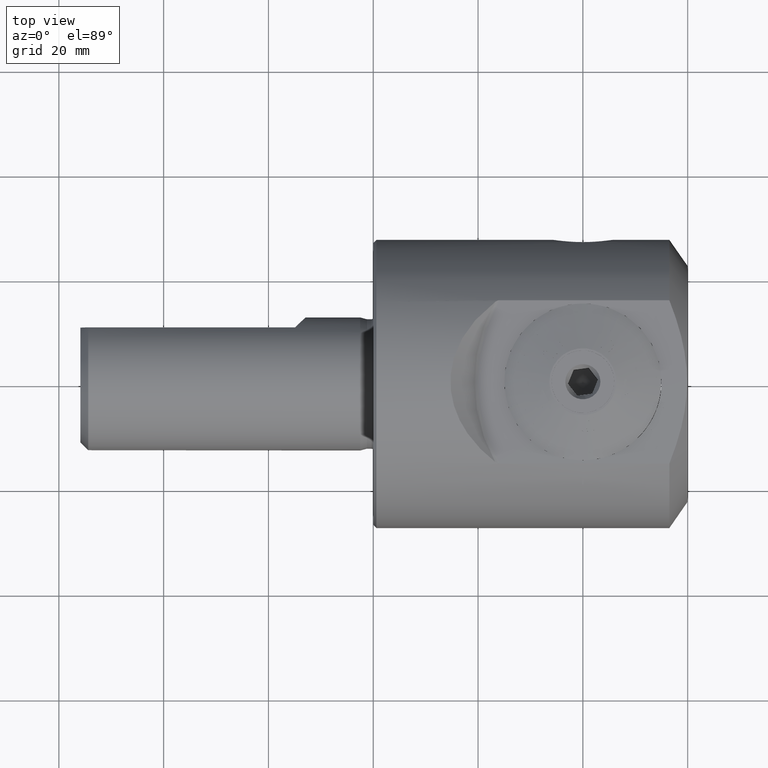
[diagram: clean part render]
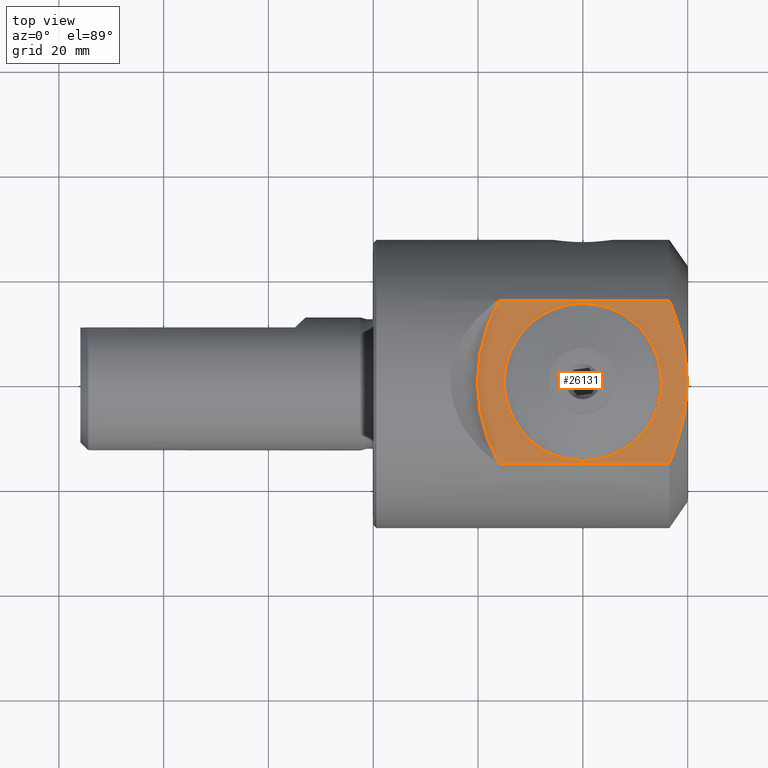
[diagram: same view with one face highlighted and labeled with its STEP entity id]
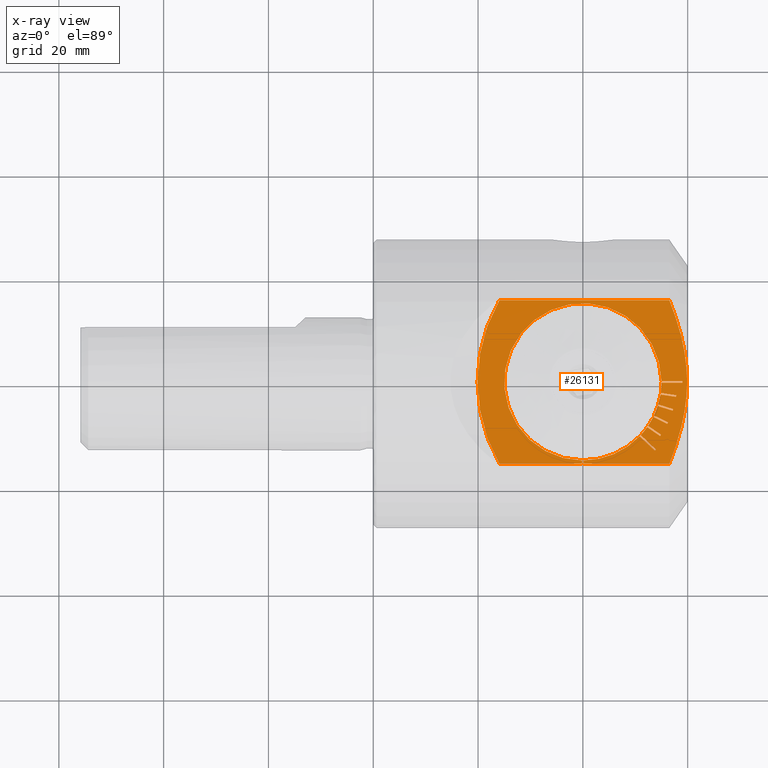
[diagram: x-ray of the same camera — body ghosted, the highlighted face saturated]
A machine part, top view. The second image highlights one B-rep face of the part: STEP entity #26131.
The next image is the same camera in x-ray: the body ghosted, the highlighted face saturated — about 0% of this face is hidden behind the body in this view.
In plain terms, the highlighted planar face has unit normal (-0, 0, -1).
Its self-contained STEP definition (entity closure, byte-faithful):
#112 = CIRCLE ( 'NONE', #9899, 14.99999999999999600 ) ;
#169 = CARTESIAN_POINT ( 'NONE',  ( 52.26728095716715200, -8.632138664196952900, 22.65000000000000200 ) ) ;
#297 = VERTEX_POINT ( 'NONE', #6872 ) ;
#301 = EDGE_CURVE ( 'NONE', #20722, #5691, #8030, .T. ) ;
#373 = EDGE_LOOP ( 'NONE', ( #12029, #12632, #1383, #11492, #11429, #8957, #24335, #26298, #10189, #18313, #18772, #25065, #17979, #4882, #21015, #24586, #26972, #1528, #20062, #3791, #993, #16313, #11646, #27628, #19376, #24517, #17328, #25419, #3711, #13087, #3928, #3365, #20590, #3291 ) ) ;
#639 = VERTEX_POINT ( 'NONE', #18731 ) ;
#834 = DIRECTION ( 'NONE',  ( 0.5672689491267530700, 0.8235325976284297900, 0.0000000000000000000 ) ) ;
#853 = CARTESIAN_POINT ( 'NONE',  ( 56.49999999999999300, 15.59575262691738300, 22.64999999999999100 ) ) ;
#867 = VERTEX_POINT ( 'NONE', #10969 ) ;
#926 = EDGE_CURVE ( 'NONE', #7166, #24728, #11368, .T. ) ;
#993 = ORIENTED_EDGE ( 'NONE', *, *, #27770, .F. ) ;
#1220 = CARTESIAN_POINT ( 'NONE',  ( 59.25221030413100500, 6.634799599960702600, 22.64999999999999500 ) ) ;
#1280 = DIRECTION ( 'NONE',  ( 0.2970415815770071100, 0.9548645447466516100, 0.0000000000000000000 ) ) ;
#1383 = ORIENTED_EDGE ( 'NONE', *, *, #6466, .T. ) ;
#1528 = ORIENTED_EDGE ( 'NONE', *, *, #20598, .F. ) ;
#1665 = EDGE_CURVE ( 'NONE', #5389, #24127, #6088, .T. ) ;
#1674 = VECTOR ( 'NONE', #9816, 1000.000000000000000 ) ;
#1874 = VERTEX_POINT ( 'NONE', #14433 ) ;
#2147 = LINE ( 'NONE', #13388, #2849 ) ;
#2157 = DIRECTION ( 'NONE',  ( -1.000000000000000000, 0.0000000000000000000, 2.312964634635743400E-016 ) ) ;
#2240 = VECTOR ( 'NONE', #6170, 1000.000000000000000 ) ;
#2306 = EDGE_CURVE ( 'NONE', #24236, #24120, #12487, .T. ) ;
#2334 = CARTESIAN_POINT ( 'NONE',  ( 56.25486189319232000, -7.733173011981859800, 22.65000000000000200 ) ) ;
#2348 = EDGE_CURVE ( 'NONE', #25229, #3007, #16179, .T. ) ;
#2530 = AXIS2_PLACEMENT_3D ( 'NONE', #22197, #2617, #9444 ) ;
#2617 = DIRECTION ( 'NONE',  ( 1.820679915794073900E-016, 0.0000000000000000000, 1.000000000000000000 ) ) ;
#2620 = CARTESIAN_POINT ( 'NONE',  ( 40.00000000000000000, 0.0000000000000000000, 22.64999999999999500 ) ) ;
#2796 = CARTESIAN_POINT ( 'NONE',  ( 54.90867709968068800, -10.08731119463737300, 22.65000000000000200 ) ) ;
#2805 = CARTESIAN_POINT ( 'NONE',  ( 39.85000000000000100, -15.59575262691739200, 22.64999999999998800 ) ) ;
#2820 = CARTESIAN_POINT ( 'NONE',  ( 57.48735440848770400, -13.10934320093748800, 22.64999999999999500 ) ) ;
#2829 = DIRECTION ( 'NONE',  ( 0.7289686274214100000, -0.6845471059286903900, 0.0000000000000000000 ) ) ;
#2849 = VECTOR ( 'NONE', #17484, 1000.000000000000000 ) ;
#3007 = VERTEX_POINT ( 'NONE', #8968 ) ;
#3195 = CARTESIAN_POINT ( 'NONE',  ( 59.24297688907884700, -6.679963896193523700, 22.64999999999999100 ) ) ;
#3252 = CARTESIAN_POINT ( 'NONE',  ( 51.07000000000000700, 0.0000000000000000000, 22.64999999999999100 ) ) ;
#3286 = CARTESIAN_POINT ( 'NONE',  ( 59.73031637954093800, -3.348392018082204200, 22.64999999999998800 ) ) ;
#3291 = ORIENTED_EDGE ( 'NONE', *, *, #7636, .F. ) ;
#3365 = ORIENTED_EDGE ( 'NONE', *, *, #14481, .F. ) ;
#3381 = CARTESIAN_POINT ( 'NONE',  ( 58.33521630919310000, -10.58117865492519800, 22.64999999999999100 ) ) ;
#3423 = VECTOR ( 'NONE', #2829, 1000.000000000000000 ) ;
#3711 = ORIENTED_EDGE ( 'NONE', *, *, #26004, .F. ) ;
#3791 = ORIENTED_EDGE ( 'NONE', *, *, #13650, .F. ) ;
#3910 = AXIS2_PLACEMENT_3D ( 'NONE', #26778, #5374, #22671 ) ;
#3928 = ORIENTED_EDGE ( 'NONE', *, *, #22681, .F. ) ;
#4075 = CARTESIAN_POINT ( 'NONE',  ( 40.15000000000000600, -14.99999999999999100, 22.64999999999998800 ) ) ;
#4130 = CARTESIAN_POINT ( 'NONE',  ( 50.83130060529244100, -10.37703845987820400, 22.65000000000000200 ) ) ;
#4195 = CARTESIAN_POINT ( 'NONE',  ( 57.81826524365055800, -2.555762842462945700, 22.65000000000000200 ) ) ;
#4280 = DIRECTION ( 'NONE',  ( 1.000000000000000000, 1.224646799147353200E-016, -0.0000000000000000000 ) ) ;
#4331 = CARTESIAN_POINT ( 'NONE',  ( 53.95308598689611300, -12.89704971853189100, 22.65000000000000200 ) ) ;
#4450 = VECTOR ( 'NONE', #27816, 1000.000000000000000 ) ;
#4700 = VERTEX_POINT ( 'NONE', #23548 ) ;
#4717 = DIRECTION ( 'NONE',  ( -0.8994052515663695200, 0.4371157666509360400, 0.0000000000000000000 ) ) ;
#4882 = ORIENTED_EDGE ( 'NONE', *, *, #926, .F. ) ;
#5232 = VERTEX_POINT ( 'NONE', #9751 ) ;
#5374 = DIRECTION ( 'NONE',  ( -1.820679915794073900E-016, -0.0000000000000000000, -1.000000000000000000 ) ) ;
#5376 = CARTESIAN_POINT ( 'NONE',  ( 59.89554222331553700, 1.347815987685409200, 22.64999999999999100 ) ) ;
#5389 = VERTEX_POINT ( 'NONE', #10121 ) ;
#5391 = LINE ( 'NONE', #11794, #1674 ) ;
#5480 = VERTEX_POINT ( 'NONE', #4130 ) ;
#5498 = CARTESIAN_POINT ( 'NONE',  ( 56.25486189319232000, -7.733173011981859800, 22.65000000000000200 ) ) ;
#5536 = LINE ( 'NONE', #27088, #9608 ) ;
#5554 = CARTESIAN_POINT ( 'NONE',  ( 58.06903622033956200, 11.19478618636037500, 22.64999999999999500 ) ) ;
#5628 = VECTOR ( 'NONE', #13341, 1000.000000000000100 ) ;
#5691 = VERTEX_POINT ( 'NONE', #2796 ) ;
#6088 = LINE ( 'NONE', #4195, #23540 ) ;
#6170 = DIRECTION ( 'NONE',  ( -1.000000000000000000, -1.224646799147353200E-016, 0.0000000000000000000 ) ) ;
#6401 = CARTESIAN_POINT ( 'NONE',  ( 24.08378234919614500, 15.59575262691738800, 22.64999999999998800 ) ) ;
#6466 = EDGE_CURVE ( 'NONE', #10818, #17648, #20899, .T. ) ;
#6501 = VERTEX_POINT ( 'NONE', #12872 ) ;
#6872 = CARTESIAN_POINT ( 'NONE',  ( 54.99924998124905800, 0.1499999999999993600, 22.64999999999999100 ) ) ;
#7040 = PLANE ( 'NONE',  #9056 ) ;
#7166 = VERTEX_POINT ( 'NONE', #19533 ) ;
#7208 = EDGE_CURVE ( 'NONE', #24120, #6501, #23483, .T. ) ;
#7374 = EDGE_CURVE ( 'NONE', #17532, #14649, #24809, .T. ) ;
#7454 = CARTESIAN_POINT ( 'NONE',  ( 59.79293790837655100, -2.671708943476587300, 22.64999999999998800 ) ) ;
#7636 = EDGE_CURVE ( 'NONE', #3007, #5480, #27256, .T. ) ;
#7707 = DIRECTION ( 'NONE',  ( -1.000000000000000000, 0.0000000000000000000, 2.312964634635743400E-016 ) ) ;
#8025 = LINE ( 'NONE', #14573, #2240 ) ;
#8030 = LINE ( 'NONE', #22270, #21774 ) ;
#8207 = EDGE_CURVE ( 'NONE', #24728, #22737, #15500, .T. ) ;
#8209 = CARTESIAN_POINT ( 'NONE',  ( 54.99924998124905800, -0.1499999999999994700, 22.65000000000000200 ) ) ;
#8569 = DIRECTION ( 'NONE',  ( 0.0000000000000000000, -1.000000000000000000, -0.0000000000000000000 ) ) ;
#8795 = CARTESIAN_POINT ( 'NONE',  ( 51.03666473707103500, -10.15834787165179500, 22.64999999999999100 ) ) ;
#8886 = LINE ( 'NONE', #18437, #25633 ) ;
#8957 = ORIENTED_EDGE ( 'NONE', *, *, #25481, .F. ) ;
#8968 = CARTESIAN_POINT ( 'NONE',  ( 40.00000000000000000, -14.99999999999999100, 22.64999999999998800 ) ) ;
#9056 = AXIS2_PLACEMENT_3D ( 'NONE', #3252, #25032, #22723 ) ;
#9250 = DIRECTION ( 'NONE',  ( -0.8235325976284260100, 0.5672689491267584000, 0.0000000000000000000 ) ) ;
#9285 = EDGE_CURVE ( 'NONE', #4700, #15902, #13246, .T. ) ;
#9299 = CARTESIAN_POINT ( 'NONE',  ( 57.14300556820300900, -5.489978150098637300, 22.65000000000000200 ) ) ;
#9444 = DIRECTION ( 'NONE',  ( -1.000000000000000000, 0.0000000000000000000, 2.312964634635743400E-016 ) ) ;
#9608 = VECTOR ( 'NONE', #22811, 1000.000000000000100 ) ;
#9750 = VECTOR ( 'NONE', #17130, 1000.000000000000200 ) ;
#9751 = CARTESIAN_POINT ( 'NONE',  ( 53.74772185511749700, -13.11574030675831200, 22.65000000000000200 ) ) ;
#9800 = VECTOR ( 'NONE', #27673, 1000.000000000000000 ) ;
#9816 = DIRECTION ( 'NONE',  ( 0.9886517447379138400, -0.1502255891207578100, -0.0000000000000000000 ) ) ;
#9876 = CARTESIAN_POINT ( 'NONE',  ( 39.85000000000000100, -14.99999999999999100, 22.64999999999998800 ) ) ;
#9899 = AXIS2_PLACEMENT_3D ( 'NONE', #19967, #17990, #24379 ) ;
#9924 = CARTESIAN_POINT ( 'NONE',  ( 53.95308598689611300, -12.89704971853189100, 22.65000000000000200 ) ) ;
#9949 = LINE ( 'NONE', #9924, #24025 ) ;
#9975 = CARTESIAN_POINT ( 'NONE',  ( 57.14300556820300900, -5.489978150098637300, 22.65000000000000200 ) ) ;
#10121 = CARTESIAN_POINT ( 'NONE',  ( 57.77319756691434100, -2.852358365884320800, 22.65000000000000200 ) ) ;
#10189 = ORIENTED_EDGE ( 'NONE', *, *, #11392, .F. ) ;
#10423 = VERTEX_POINT ( 'NONE', #6401 ) ;
#10434 = VECTOR ( 'NONE', #4717, 1000.000000000000000 ) ;
#10458 = VECTOR ( 'NONE', #21184, 1000.000000000000000 ) ;
#10717 = VERTEX_POINT ( 'NONE', #25861 ) ;
#10818 = VERTEX_POINT ( 'NONE', #17888 ) ;
#10969 = CARTESIAN_POINT ( 'NONE',  ( 54.27769576764991700, -4.598630618611536200, 22.65000000000000200 ) ) ;
#11010 = CIRCLE ( 'NONE', #19835, 14.99999999999999600 ) ;
#11025 = DIRECTION ( 'NONE',  ( 0.8235325976284276800, -0.5672689491267561800, 0.0000000000000000000 ) ) ;
#11342 = DIRECTION ( 'NONE',  ( 1.820679915794073900E-016, 0.0000000000000000000, 1.000000000000000000 ) ) ;
#11368 = CIRCLE ( 'NONE', #18902, 14.99999999999999600 ) ;
#11392 = EDGE_CURVE ( 'NONE', #3007, #17532, #17415, .T. ) ;
#11429 = ORIENTED_EDGE ( 'NONE', *, *, #19544, .T. ) ;
#11442 = VERTEX_POINT ( 'NONE', #4331 ) ;
#11466 = CARTESIAN_POINT ( 'NONE',  ( 57.14300556820300900, -5.489978150098637300, 22.65000000000000200 ) ) ;
#11492 = ORIENTED_EDGE ( 'NONE', *, *, #20408, .T. ) ;
#11646 = ORIENTED_EDGE ( 'NONE', *, *, #7208, .F. ) ;
#11794 = CARTESIAN_POINT ( 'NONE',  ( 57.77319756691434100, -2.852358365884320800, 22.65000000000000200 ) ) ;
#11807 = CARTESIAN_POINT ( 'NONE',  ( 59.81167204880571100, 2.676702676354043100, 22.64999999999999900 ) ) ;
#12029 = ORIENTED_EDGE ( 'NONE', *, *, #2348, .F. ) ;
#12487 = LINE ( 'NONE', #13479, #27540 ) ;
#12632 = ORIENTED_EDGE ( 'NONE', *, *, #18133, .T. ) ;
#12864 = EDGE_CURVE ( 'NONE', #15902, #24236, #27500, .T. ) ;
#12872 = CARTESIAN_POINT ( 'NONE',  ( 53.55597156768983100, -6.421497867007723800, 22.64999999999999100 ) ) ;
#13087 = ORIENTED_EDGE ( 'NONE', *, *, #27213, .F. ) ;
#13099 = CIRCLE ( 'NONE', #27035, 14.99999999999999600 ) ;
#13122 = DIRECTION ( 'NONE',  ( 0.0000000000000000000, 1.000000000000000000, 0.0000000000000000000 ) ) ;
#13173 = CARTESIAN_POINT ( 'NONE',  ( 39.85000000000000100, -15.59575262691736700, 22.64999999999998800 ) ) ;
#13246 = CIRCLE ( 'NONE', #2530, 14.99999999999999600 ) ;
#13341 = DIRECTION ( 'NONE',  ( 0.9548645447466424000, -0.2970415815770366400, -0.0000000000000000000 ) ) ;
#13388 = CARTESIAN_POINT ( 'NONE',  ( 53.74772185511749700, -13.11574030675831200, 22.65000000000000200 ) ) ;
#13479 = CARTESIAN_POINT ( 'NONE',  ( 56.12372716319704600, -8.002994587451771800, 22.65000000000000200 ) ) ;
#13650 = EDGE_CURVE ( 'NONE', #14066, #10717, #22440, .T. ) ;
#13734 = LINE ( 'NONE', #9299, #5628 ) ;
#14022 = DIRECTION ( 'NONE',  ( -0.9548645447466422900, 0.2970415815770369700, 0.0000000000000000000 ) ) ;
#14066 = VERTEX_POINT ( 'NONE', #11466 ) ;
#14173 = CARTESIAN_POINT ( 'NONE',  ( 54.99924998124905800, -0.1499999999999994700, 22.65000000000000200 ) ) ;
#14233 = CARTESIAN_POINT ( 'NONE',  ( 59.00000000000000700, -0.1499999999999999900, 22.65000000000000200 ) ) ;
#14325 = DIRECTION ( 'NONE',  ( -0.7289686274214141100, 0.6845471059286859500, 0.0000000000000000000 ) ) ;
#14433 = CARTESIAN_POINT ( 'NONE',  ( 59.00000000000000700, 0.1499999999999999900, 22.65000000000000200 ) ) ;
#14481 = EDGE_CURVE ( 'NONE', #5232, #11442, #2147, .T. ) ;
#14562 = DIRECTION ( 'NONE',  ( 1.820679915794073900E-016, 0.0000000000000000000, 1.000000000000000000 ) ) ;
#14573 = CARTESIAN_POINT ( 'NONE',  ( 74.19847925450540100, 15.59575262691738800, 22.64999999999998800 ) ) ;
#14649 = VERTEX_POINT ( 'NONE', #2805 ) ;
#14674 = EDGE_CURVE ( 'NONE', #5691, #4700, #24719, .T. ) ;
#14727 = CARTESIAN_POINT ( 'NONE',  ( 54.36680824212303500, -4.312171255187540600, 22.64999999999999100 ) ) ;
#14813 = CIRCLE ( 'NONE', #3910, 31.16862915010153000 ) ;
#14920 = CARTESIAN_POINT ( 'NONE',  ( 40.00000000000000000, 0.0000000000000000000, 22.64999999999999500 ) ) ;
#14936 = DIRECTION ( 'NONE',  ( 1.000000000000000000, 1.224646799147353200E-016, -0.0000000000000000000 ) ) ;
#15085 = DIRECTION ( 'NONE',  ( -1.000000000000000000, -0.0000000000000000000, -0.0000000000000000000 ) ) ;
#15125 = EDGE_CURVE ( 'NONE', #24127, #7166, #5536, .T. ) ;
#15335 = DIRECTION ( 'NONE',  ( 1.820679915794073900E-016, 0.0000000000000000000, 1.000000000000000000 ) ) ;
#15464 = DIRECTION ( 'NONE',  ( -1.000000000000000000, 8.881784197001252300E-016, 2.312964634635743400E-016 ) ) ;
#15500 = LINE ( 'NONE', #8209, #9800 ) ;
#15838 = FACE_OUTER_BOUND ( 'NONE', #373, .T. ) ;
#15902 = VERTEX_POINT ( 'NONE', #15945 ) ;
#15945 = CARTESIAN_POINT ( 'NONE',  ( 53.42483683769455600, -6.691319442477651000, 22.65000000000000200 ) ) ;
#16110 = VECTOR ( 'NONE', #15085, 1000.000000000000000 ) ;
#16179 = LINE ( 'NONE', #4075, #10458 ) ;
#16234 = CARTESIAN_POINT ( 'NONE',  ( 56.49999999999999300, 15.59575262691738300, 22.64999999999999100 ) ) ;
#16313 = ORIENTED_EDGE ( 'NONE', *, *, #22262, .F. ) ;
#16347 = VECTOR ( 'NONE', #13122, 1000.000000000000000 ) ;
#16437 = VECTOR ( 'NONE', #8569, 1000.000000000000000 ) ;
#16731 = VECTOR ( 'NONE', #1280, 1000.000000000000000 ) ;
#16993 = CARTESIAN_POINT ( 'NONE',  ( 24.08378234919614900, -15.59575262691740200, 22.64999999999998800 ) ) ;
#17130 = DIRECTION ( 'NONE',  ( 0.8994052515663710800, -0.4371157666509327700, 0.0000000000000000000 ) ) ;
#17328 = ORIENTED_EDGE ( 'NONE', *, *, #14674, .F. ) ;
#17415 = LINE ( 'NONE', #21532, #16110 ) ;
#17484 = DIRECTION ( 'NONE',  ( 0.6845471059287079300, 0.7289686274213935700, 0.0000000000000000000 ) ) ;
#17532 = VERTEX_POINT ( 'NONE', #9876 ) ;
#17648 = VERTEX_POINT ( 'NONE', #19102 ) ;
#17674 = CARTESIAN_POINT ( 'NONE',  ( 56.49999999999999300, -15.59575262691738700, 22.64999999999999100 ) ) ;
#17888 = CARTESIAN_POINT ( 'NONE',  ( 40.15000000000000600, -15.59575262691736700, 22.64999999999998800 ) ) ;
#17979 = ORIENTED_EDGE ( 'NONE', *, *, #8207, .F. ) ;
#17990 = DIRECTION ( 'NONE',  ( 1.820679915794073900E-016, 0.0000000000000000000, 1.000000000000000000 ) ) ;
#18049 = CARTESIAN_POINT ( 'NONE',  ( 58.62912033779870300, 9.251466283869858000, 22.64999999999999500 ) ) ;
#18133 = EDGE_CURVE ( 'NONE', #25229, #10818, #8886, .T. ) ;
#18235 = CARTESIAN_POINT ( 'NONE',  ( 59.89623582532029600, -0.6571221920717688100, 22.64999999999999900 ) ) ;
#18313 = ORIENTED_EDGE ( 'NONE', *, *, #23976, .F. ) ;
#18326 = CARTESIAN_POINT ( 'NONE',  ( 58.26450741583852300, 10.55148013437460000, 22.64999999999999100 ) ) ;
#18422 = CARTESIAN_POINT ( 'NONE',  ( 59.48988989907446300, 5.320183702104091400, 22.64999999999999100 ) ) ;
#18437 = CARTESIAN_POINT ( 'NONE',  ( 40.15000000000000600, -15.59575262691736700, 22.64999999999998800 ) ) ;
#18456 = EDGE_CURVE ( 'NONE', #639, #5389, #5391, .T. ) ;
#18731 = CARTESIAN_POINT ( 'NONE',  ( 54.80650082535389300, -2.401568926513335100, 22.65000000000000200 ) ) ;
#18772 = ORIENTED_EDGE ( 'NONE', *, *, #24269, .F. ) ;
#18848 = AXIS2_PLACEMENT_3D ( 'NONE', #20724, #14562, #7707 ) ;
#18902 = AXIS2_PLACEMENT_3D ( 'NONE', #2620, #11342, #15464 ) ;
#19102 = CARTESIAN_POINT ( 'NONE',  ( 56.49999999999999300, -15.59575262691738700, 22.64999999999999100 ) ) ;
#19143 = DIRECTION ( 'NONE',  ( -1.000000000000000000, 9.769962616701376000E-015, 2.312964634635743400E-016 ) ) ;
#19211 = CARTESIAN_POINT ( 'NONE',  ( 74.19847925450540100, -15.59575262691738800, 22.64999999999998800 ) ) ;
#19354 = CARTESIAN_POINT ( 'NONE',  ( 59.00000000000000700, -0.1499999999999999900, 22.65000000000000200 ) ) ;
#19376 = ORIENTED_EDGE ( 'NONE', *, *, #12864, .F. ) ;
#19440 = VECTOR ( 'NONE', #14022, 1000.000000000000000 ) ;
#19533 = CARTESIAN_POINT ( 'NONE',  ( 54.85156850209012400, -2.104973403091960000, 22.64999999999999100 ) ) ;
#19544 = EDGE_CURVE ( 'NONE', #20015, #10423, #8025, .T. ) ;
#19675 = VERTEX_POINT ( 'NONE', #16993 ) ;
#19749 = LINE ( 'NONE', #23842, #20086 ) ;
#19835 = AXIS2_PLACEMENT_3D ( 'NONE', #25429, #23293, #19143 ) ;
#19943 = CARTESIAN_POINT ( 'NONE',  ( 50.83130060529244100, -10.37703845987820400, 22.65000000000000200 ) ) ;
#19967 = CARTESIAN_POINT ( 'NONE',  ( 40.00000000000000000, 0.0000000000000000000, 22.64999999999999500 ) ) ;
#20015 = VERTEX_POINT ( 'NONE', #16234 ) ;
#20062 = ORIENTED_EDGE ( 'NONE', *, *, #20903, .F. ) ;
#20086 = VECTOR ( 'NONE', #11025, 1000.000000000000000 ) ;
#20205 = DIRECTION ( 'NONE',  ( 0.4371157666509243300, 0.8994052515663751900, 0.0000000000000000000 ) ) ;
#20261 = LINE ( 'NONE', #19943, #3423 ) ;
#20403 = CARTESIAN_POINT ( 'NONE',  ( 58.79737930182129400, 8.597601870087691700, 22.64999999999999500 ) ) ;
#20408 = EDGE_CURVE ( 'NONE', #17648, #20015, #27777, .T. ) ;
#20471 = CARTESIAN_POINT ( 'NONE',  ( 57.23211804267611300, -5.203518786674641700, 22.65000000000000200 ) ) ;
#20567 = VECTOR ( 'NONE', #14936, 1000.000000000000000 ) ;
#20577 = CARTESIAN_POINT ( 'NONE',  ( 57.44889431143914700, 13.10753656627196200, 22.64999999999998800 ) ) ;
#20590 = ORIENTED_EDGE ( 'NONE', *, *, #24319, .F. ) ;
#20598 = EDGE_CURVE ( 'NONE', #24169, #639, #11010, .T. ) ;
#20722 = VERTEX_POINT ( 'NONE', #26082 ) ;
#20724 = CARTESIAN_POINT ( 'NONE',  ( 40.00000000000000000, 0.0000000000000000000, 22.64999999999999500 ) ) ;
#20872 = DIRECTION ( 'NONE',  ( 0.0000000000000000000, -1.000000000000000000, -0.0000000000000000000 ) ) ;
#20899 = LINE ( 'NONE', #23533, #20567 ) ;
#20903 = EDGE_CURVE ( 'NONE', #10717, #24169, #23475, .T. ) ;
#21015 = ORIENTED_EDGE ( 'NONE', *, *, #15125, .F. ) ;
#21184 = DIRECTION ( 'NONE',  ( -1.000000000000000000, -0.0000000000000000000, -0.0000000000000000000 ) ) ;
#21359 = VECTOR ( 'NONE', #9250, 1000.000000000000000 ) ;
#21361 = CARTESIAN_POINT ( 'NONE',  ( 59.00000000000000700, 0.1499999999999999900, 22.65000000000000200 ) ) ;
#21532 = CARTESIAN_POINT ( 'NONE',  ( 40.15000000000000600, -14.99999999999999100, 22.64999999999998800 ) ) ;
#21774 = VECTOR ( 'NONE', #834, 1000.000000000000000 ) ;
#21960 = DIRECTION ( 'NONE',  ( 0.1502255891207284800, 0.9886517447379182800, -0.0000000000000000000 ) ) ;
#22197 = CARTESIAN_POINT ( 'NONE',  ( 40.00000000000000000, 0.0000000000000000000, 22.64999999999999500 ) ) ;
#22262 = EDGE_CURVE ( 'NONE', #6501, #867, #25721, .T. ) ;
#22270 = CARTESIAN_POINT ( 'NONE',  ( 54.73849641494266600, -10.33437097392589600, 22.65000000000000200 ) ) ;
#22339 = EDGE_CURVE ( 'NONE', #22737, #1874, #22368, .T. ) ;
#22368 = LINE ( 'NONE', #19354, #16347 ) ;
#22440 = LINE ( 'NONE', #9975, #16731 ) ;
#22671 = DIRECTION ( 'NONE',  ( -1.000000000000000000, 0.0000000000000000000, 2.226242890083802700E-016 ) ) ;
#22676 = CARTESIAN_POINT ( 'NONE',  ( 56.99074226531229900, 14.35993883633720700, 22.64999999999999500 ) ) ;
#22681 = EDGE_CURVE ( 'NONE', #11442, #24265, #9949, .T. ) ;
#22683 = LINE ( 'NONE', #19211, #26002 ) ;
#22705 = CARTESIAN_POINT ( 'NONE',  ( 57.81826524365055800, -2.555762842462945700, 22.65000000000000200 ) ) ;
#22723 = DIRECTION ( 'NONE',  ( -1.000000000000000000, 0.0000000000000000000, 1.820679915794073900E-016 ) ) ;
#22737 = VERTEX_POINT ( 'NONE', #14233 ) ;
#22811 = DIRECTION ( 'NONE',  ( -0.9886517447379138400, 0.1502255891207578700, -0.0000000000000000000 ) ) ;
#22951 = AXIS2_PLACEMENT_3D ( 'NONE', #14920, #23706, #2157 ) ;
#23293 = DIRECTION ( 'NONE',  ( 1.820679915794073900E-016, 0.0000000000000000000, 1.000000000000000000 ) ) ;
#23475 = LINE ( 'NONE', #20471, #19440 ) ;
#23483 = LINE ( 'NONE', #2334, #10434 ) ;
#23533 = CARTESIAN_POINT ( 'NONE',  ( 74.19847925450540100, -15.59575262691738800, 22.64999999999998800 ) ) ;
#23540 = VECTOR ( 'NONE', #21960, 1000.000000000000100 ) ;
#23547 = EDGE_CURVE ( 'NONE', #19675, #14649, #22683, .T. ) ;
#23548 = CARTESIAN_POINT ( 'NONE',  ( 52.43746164190518800, -8.385078884908422100, 22.64999999999999100 ) ) ;
#23701 = CARTESIAN_POINT ( 'NONE',  ( 56.12372716319704600, -8.002994587451771800, 22.65000000000000200 ) ) ;
#23706 = DIRECTION ( 'NONE',  ( 1.820679915794073900E-016, 0.0000000000000000000, 1.000000000000000000 ) ) ;
#23842 = CARTESIAN_POINT ( 'NONE',  ( 52.26728095716715200, -8.632138664196952900, 22.65000000000000200 ) ) ;
#23976 = EDGE_CURVE ( 'NONE', #297, #3007, #112, .T. ) ;
#24025 = VECTOR ( 'NONE', #14325, 1000.000000000000000 ) ;
#24120 = VERTEX_POINT ( 'NONE', #5498 ) ;
#24127 = VERTEX_POINT ( 'NONE', #22705 ) ;
#24141 = CARTESIAN_POINT ( 'NONE',  ( 40.00000000000000000, 0.0000000000000000000, 22.64999999999999500 ) ) ;
#24169 = VERTEX_POINT ( 'NONE', #14727 ) ;
#24236 = VERTEX_POINT ( 'NONE', #23701 ) ;
#24265 = VERTEX_POINT ( 'NONE', #8795 ) ;
#24269 = EDGE_CURVE ( 'NONE', #1874, #297, #24961, .T. ) ;
#24319 = EDGE_CURVE ( 'NONE', #5480, #5232, #20261, .T. ) ;
#24335 = ORIENTED_EDGE ( 'NONE', *, *, #23547, .T. ) ;
#24379 = DIRECTION ( 'NONE',  ( -1.000000000000000000, 0.0000000000000000000, 2.312964634635743400E-016 ) ) ;
#24430 = CARTESIAN_POINT ( 'NONE',  ( 54.90867709968068800, -10.08731119463737300, 22.65000000000000200 ) ) ;
#24517 = ORIENTED_EDGE ( 'NONE', *, *, #9285, .F. ) ;
#24586 = ORIENTED_EDGE ( 'NONE', *, *, #1665, .F. ) ;
#24719 = LINE ( 'NONE', #24430, #21359 ) ;
#24728 = VERTEX_POINT ( 'NONE', #14173 ) ;
#24809 = LINE ( 'NONE', #13173, #16437 ) ;
#24961 = LINE ( 'NONE', #21361, #4450 ) ;
#25032 = DIRECTION ( 'NONE',  ( -1.820679915794073900E-016, 0.0000000000000000000, -1.000000000000000000 ) ) ;
#25065 = ORIENTED_EDGE ( 'NONE', *, *, #22339, .F. ) ;
#25229 = VERTEX_POINT ( 'NONE', #25553 ) ;
#25419 = ORIENTED_EDGE ( 'NONE', *, *, #301, .F. ) ;
#25429 = CARTESIAN_POINT ( 'NONE',  ( 40.00000000000000000, 0.0000000000000000000, 22.64999999999999500 ) ) ;
#25481 = EDGE_CURVE ( 'NONE', #19675, #10423, #14813, .T. ) ;
#25553 = CARTESIAN_POINT ( 'NONE',  ( 40.15000000000000600, -14.99999999999999100, 22.64999999999998800 ) ) ;
#25633 = VECTOR ( 'NONE', #20872, 1000.000000000000000 ) ;
#25721 = CIRCLE ( 'NONE', #22951, 14.99999999999999600 ) ;
#25861 = CARTESIAN_POINT ( 'NONE',  ( 57.23211804267611300, -5.203518786674641700, 22.65000000000000200 ) ) ;
#25911 = CARTESIAN_POINT ( 'NONE',  ( 53.42483683769455600, -6.691319442477651000, 22.65000000000000200 ) ) ;
#26002 = VECTOR ( 'NONE', #4280, 1000.000000000000000 ) ;
#26004 = EDGE_CURVE ( 'NONE', #27224, #20722, #19749, .T. ) ;
#26082 = CARTESIAN_POINT ( 'NONE',  ( 54.73849641494266600, -10.33437097392589600, 22.65000000000000200 ) ) ;
#26131 = ADVANCED_FACE ( 'NONE', ( #15838 ), #7040, .F. ) ;
#26191 = DIRECTION ( 'NONE',  ( -1.000000000000000000, -7.993605777301125500E-015, 2.312964634635743400E-016 ) ) ;
#26298 = ORIENTED_EDGE ( 'NONE', *, *, #7374, .F. ) ;
#26778 = CARTESIAN_POINT ( 'NONE',  ( 51.07000000000001400, 0.0000000000000000000, 22.64999999999998800 ) ) ;
#26780 = CARTESIAN_POINT ( 'NONE',  ( 59.48407003890239500, -5.361151699488043900, 22.64999999999999100 ) ) ;
#26962 = CARTESIAN_POINT ( 'NONE',  ( 59.87571567190975200, -1.327360276885151300, 22.64999999999998800 ) ) ;
#26972 = ORIENTED_EDGE ( 'NONE', *, *, #18456, .F. ) ;
#27035 = AXIS2_PLACEMENT_3D ( 'NONE', #24141, #15335, #26191 ) ;
#27088 = CARTESIAN_POINT ( 'NONE',  ( 54.85156850209011700, -2.104973403091960900, 22.65000000000000200 ) ) ;
#27213 = EDGE_CURVE ( 'NONE', #24265, #27224, #13099, .T. ) ;
#27224 = VERTEX_POINT ( 'NONE', #169 ) ;
#27256 = CIRCLE ( 'NONE', #18848, 14.99999999999999600 ) ;
#27500 = LINE ( 'NONE', #25911, #9750 ) ;
#27540 = VECTOR ( 'NONE', #20205, 1000.000000000000200 ) ;
#27628 = ORIENTED_EDGE ( 'NONE', *, *, #2306, .F. ) ;
#27673 = DIRECTION ( 'NONE',  ( 1.000000000000000000, -1.287248714658256500E-016, 0.0000000000000000000 ) ) ;
#27770 = EDGE_CURVE ( 'NONE', #867, #14066, #13734, .T. ) ;
#27777 = B_SPLINE_CURVE_WITH_KNOTS ( 'NONE', 3,
 ( #17674, #2820, #3381, #3195, #26780, #3286, #7454, #26962, #18235, #5376, #11807, #18422, #1220, #20403, #18049, #18326, #5554, #20577, #22676, #853 ),
 .UNSPECIFIED., .F., .F.,
 ( 4, 2, 2, 2, 2, 2, 2, 2, 2, 4 ),
 ( 0.03650926862294422100, 0.04454199993707899700, 0.04855836559414639100, 0.05056654842268008800, 0.05257473125121378500, 0.05659109690828116600, 0.06060746256534856000, 0.06261564539388225800, 0.06462382822241595500, 0.06864019387948334900 ),
 .UNSPECIFIED. ) ;
#27816 = DIRECTION ( 'NONE',  ( -1.000000000000000000, -1.287248714658256500E-016, 0.0000000000000000000 ) ) ;